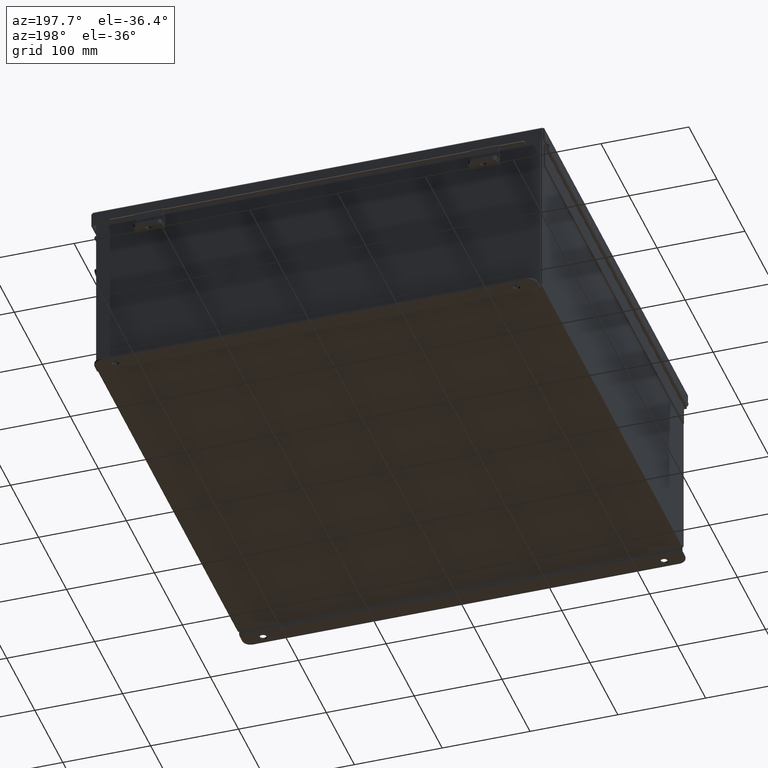
[diagram: clean part render]
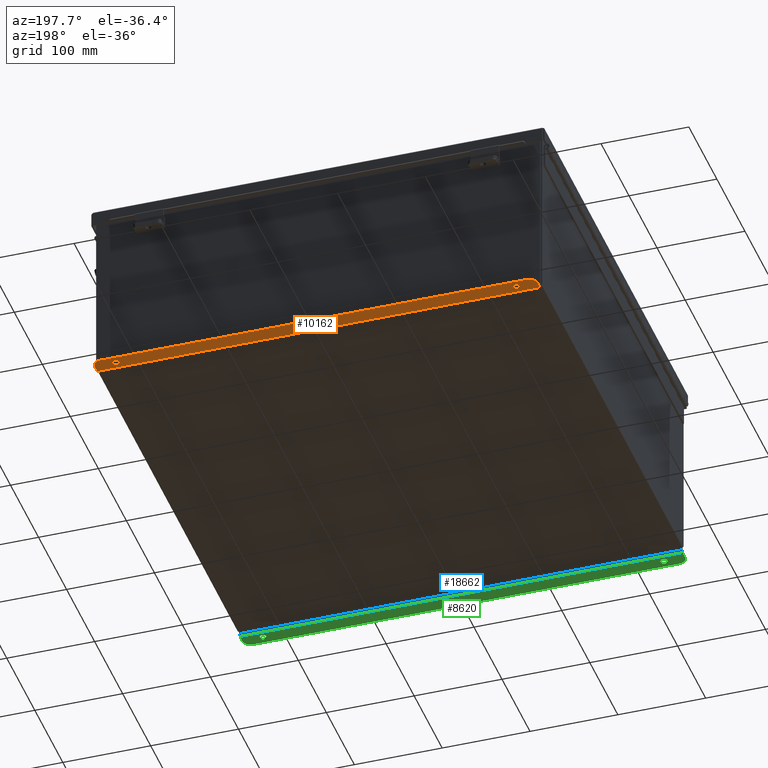
[diagram: same view with three faces highlighted in distinct colors, each labeled with its STEP entity id]
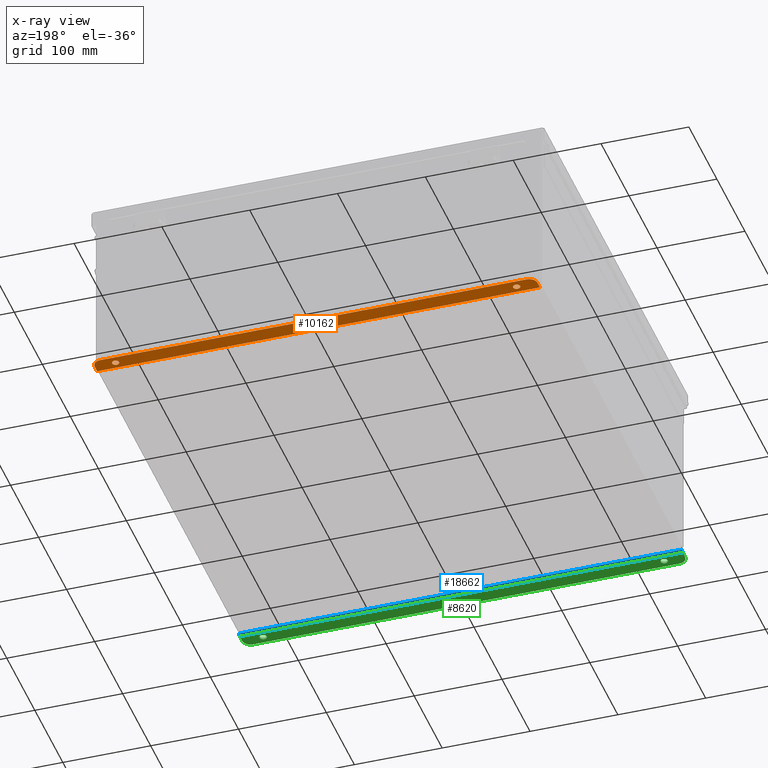
[diagram: x-ray of the same camera — body ghosted, the three highlighted faces saturated]
A machine part, auxiliary view with three faces highlighted in distinct colors.
The next image is the same camera in x-ray (body ghosted, the three faces saturated) — at least one of them is partly hidden behind the body in this view.
Their STEP definitions:

[orange] entity #10162 — the highlighted planar face has unit normal (0, 0, 1).
#339 = EDGE_CURVE ( 'NONE', #21179, #10850, #12421, .T. ) ;
#373 = CARTESIAN_POINT ( 'NONE',  ( 9.550299999999998200, 0.7377999999999989000, -4.187000000000003800 ) ) ;
#477 = DIRECTION ( 'NONE',  ( 0.0000000000000000000, 1.000000000000000000, -3.502369222646487000E-015 ) ) ;
#771 = VERTEX_POINT ( 'NONE', #17897 ) ;
#903 = DIRECTION ( 'NONE',  ( 0.0000000000000000000, -3.702694488566362300E-015, -1.000000000000000000 ) ) ;
#1253 = CARTESIAN_POINT ( 'NONE',  ( 9.925299999999998200, 0.01300000000000010700, -4.187000000000001200 ) ) ;
#1612 = VERTEX_POINT ( 'NONE', #6002 ) ;
#2067 = CIRCLE ( 'NONE', #7298, 0.1560000000000001900 ) ;
#2246 = EDGE_CURVE ( 'NONE', #16551, #771, #17233, .T. ) ;
#2334 = ORIENTED_EDGE ( 'NONE', *, *, #2246, .T. ) ;
#2651 = DIRECTION ( 'NONE',  ( 0.0000000000000000000, -1.000000000000000000, 3.702694488566362300E-015 ) ) ;
#2769 = VERTEX_POINT ( 'NONE', #17541 ) ;
#2870 = CARTESIAN_POINT ( 'NONE',  ( 0.0000000000000000000, 0.7377999999999989000, -4.187000000000003800 ) ) ;
#3526 = ORIENTED_EDGE ( 'NONE', *, *, #19359, .F. ) ;
#3590 = AXIS2_PLACEMENT_3D ( 'NONE', #6975, #19028, #8708 ) ;
#3943 = ORIENTED_EDGE ( 'NONE', *, *, #4002, .T. ) ;
#4002 = EDGE_CURVE ( 'NONE', #2769, #8201, #10166, .T. ) ;
#4089 = DIRECTION ( 'NONE',  ( 1.000000000000000000, 2.752408485047568600E-017, -1.019132772786892100E-031 ) ) ;
#4244 = DIRECTION ( 'NONE',  ( 0.0000000000000000000, -3.702694488566362300E-015, -1.000000000000000000 ) ) ;
#4315 = CARTESIAN_POINT ( 'NONE',  ( 0.0000000000000000000, -1.529834876451987200E-014, -4.187000000000001200 ) ) ;
#4382 = PLANE ( 'NONE',  #15698 ) ;
#4482 = FACE_BOUND ( 'NONE', #19039, .T. ) ;
#4507 = AXIS2_PLACEMENT_3D ( 'NONE', #19953, #9580, #21693 ) ;
#4541 = DIRECTION ( 'NONE',  ( 1.000000000000000000, 0.0000000000000000000, -0.0000000000000000000 ) ) ;
#4712 = VERTEX_POINT ( 'NONE', #19571 ) ;
#4862 = VERTEX_POINT ( 'NONE', #14718 ) ;
#5003 = CIRCLE ( 'NONE', #9954, 0.1560000000000001900 ) ;
#5655 = DIRECTION ( 'NONE',  ( 0.0000000000000000000, 1.000000000000000000, -3.702694488566362300E-015 ) ) ;
#5854 = ORIENTED_EDGE ( 'NONE', *, *, #339, .F. ) ;
#6002 = CARTESIAN_POINT ( 'NONE',  ( -8.987800000000000000, 0.2068000000000006800, -4.187000000000001200 ) ) ;
#6024 = EDGE_CURVE ( 'NONE', #771, #10850, #17713, .T. ) ;
#6141 = DIRECTION ( 'NONE',  ( 0.0000000000000000000, -1.000000000000000000, 3.702694488566362300E-015 ) ) ;
#6312 = CIRCLE ( 'NONE', #19712, 0.1560000000000001900 ) ;
#6726 = DIRECTION ( 'NONE',  ( 0.0000000000000000000, -3.702694488566362300E-015, -1.000000000000000000 ) ) ;
#6975 = CARTESIAN_POINT ( 'NONE',  ( 9.550299999999998200, 0.3628000000000008400, -4.187000000000002100 ) ) ;
#7298 = AXIS2_PLACEMENT_3D ( 'NONE', #14576, #4244, #16289 ) ;
#7361 = EDGE_CURVE ( 'NONE', #21179, #2769, #13603, .T. ) ;
#7415 = CARTESIAN_POINT ( 'NONE',  ( -9.925300000000001800, -1.529834876451987200E-014, -4.187000000000001200 ) ) ;
#8201 = VERTEX_POINT ( 'NONE', #13368 ) ;
#8400 = ORIENTED_EDGE ( 'NONE', *, *, #21008, .F. ) ;
#8708 = DIRECTION ( 'NONE',  ( 0.0000000000000000000, -1.000000000000000000, 4.370956789862820400E-015 ) ) ;
#8730 = EDGE_LOOP ( 'NONE', ( #17285, #9293 ) ) ;
#9035 = VECTOR ( 'NONE', #5655, 39.37007874015748100 ) ;
#9059 = FACE_OUTER_BOUND ( 'NONE', #17363, .T. ) ;
#9293 = ORIENTED_EDGE ( 'NONE', *, *, #12985, .F. ) ;
#9580 = DIRECTION ( 'NONE',  ( -0.0000000000000000000, -3.702694488566362300E-015, -1.000000000000000000 ) ) ;
#9954 = AXIS2_PLACEMENT_3D ( 'NONE', #11247, #903, #12968 ) ;
#10075 = ORIENTED_EDGE ( 'NONE', *, *, #10237, .T. ) ;
#10137 = EDGE_CURVE ( 'NONE', #4712, #1612, #5003, .T. ) ;
#10162 = ADVANCED_FACE ( 'NONE', ( #14727, #4482, #9059 ), #4382, .F. ) ;
#10166 = CIRCLE ( 'NONE', #4507, 0.3750000000000000600 ) ;
#10237 = EDGE_CURVE ( 'NONE', #8201, #16551, #12007, .T. ) ;
#10820 = DIRECTION ( 'NONE',  ( 0.0000000000000000000, -3.702694488566362300E-015, -1.000000000000000000 ) ) ;
#10850 = VERTEX_POINT ( 'NONE', #1253 ) ;
#11247 = CARTESIAN_POINT ( 'NONE',  ( -8.987800000000000000, 0.3628000000000008400, -4.187000000000002100 ) ) ;
#11337 = AXIS2_PLACEMENT_3D ( 'NONE', #21186, #10820, #477 ) ;
#12007 = LINE ( 'NONE', #2870, #16036 ) ;
#12033 = ORIENTED_EDGE ( 'NONE', *, *, #6024, .T. ) ;
#12037 = CARTESIAN_POINT ( 'NONE',  ( -9.925300000000000000, 0.01300000000000010700, -4.187000000000001200 ) ) ;
#12421 = LINE ( 'NONE', #19648, #21102 ) ;
#12968 = DIRECTION ( 'NONE',  ( 0.0000000000000000000, 1.000000000000000000, -3.502369222646487000E-015 ) ) ;
#12985 = EDGE_CURVE ( 'NONE', #1612, #4712, #2067, .T. ) ;
#13368 = CARTESIAN_POINT ( 'NONE',  ( -9.550300000000001800, 0.7377999999999989000, -4.187000000000003800 ) ) ;
#13603 = LINE ( 'NONE', #7415, #9035 ) ;
#14576 = CARTESIAN_POINT ( 'NONE',  ( -8.987800000000000000, 0.3628000000000008400, -4.187000000000002100 ) ) ;
#14718 = CARTESIAN_POINT ( 'NONE',  ( 8.987799999999998200, 0.2068000000000006800, -4.187000000000001200 ) ) ;
#14727 = FACE_BOUND ( 'NONE', #8730, .T. ) ;
#14809 = VERTEX_POINT ( 'NONE', #18394 ) ;
#15537 = VECTOR ( 'NONE', #2651, 39.37007874015748100 ) ;
#15698 = AXIS2_PLACEMENT_3D ( 'NONE', #4315, #16432, #6141 ) ;
#16036 = VECTOR ( 'NONE', #4541, 39.37007874015748100 ) ;
#16289 = DIRECTION ( 'NONE',  ( 0.0000000000000000000, 1.000000000000000000, -3.502369222646487000E-015 ) ) ;
#16432 = DIRECTION ( 'NONE',  ( 0.0000000000000000000, 3.702694488566362300E-015, 1.000000000000000000 ) ) ;
#16551 = VERTEX_POINT ( 'NONE', #373 ) ;
#17019 = CARTESIAN_POINT ( 'NONE',  ( 8.987799999999998200, 0.3628000000000008400, -4.187000000000002100 ) ) ;
#17233 = CIRCLE ( 'NONE', #3590, 0.3750000000000000600 ) ;
#17285 = ORIENTED_EDGE ( 'NONE', *, *, #10137, .F. ) ;
#17363 = EDGE_LOOP ( 'NONE', ( #10075, #2334, #12033, #5854, #18804, #3943 ) ) ;
#17541 = CARTESIAN_POINT ( 'NONE',  ( -9.925300000000001800, 0.3628000000000008400, -4.187000000000002100 ) ) ;
#17713 = LINE ( 'NONE', #18176, #15537 ) ;
#17897 = CARTESIAN_POINT ( 'NONE',  ( 9.925299999999998200, 0.3628000000000008400, -4.187000000000002100 ) ) ;
#18176 = CARTESIAN_POINT ( 'NONE',  ( 9.925299999999998200, -1.529834876451987200E-014, -4.187000000000001200 ) ) ;
#18394 = CARTESIAN_POINT ( 'NONE',  ( 8.987799999999998200, 0.5188000000000010400, -4.187000000000002900 ) ) ;
#18776 = DIRECTION ( 'NONE',  ( 0.0000000000000000000, 1.000000000000000000, -3.502369222646487000E-015 ) ) ;
#18804 = ORIENTED_EDGE ( 'NONE', *, *, #7361, .T. ) ;
#19028 = DIRECTION ( 'NONE',  ( -0.0000000000000000000, -3.702694488566362300E-015, -1.000000000000000000 ) ) ;
#19039 = EDGE_LOOP ( 'NONE', ( #8400, #3526 ) ) ;
#19359 = EDGE_CURVE ( 'NONE', #4862, #14809, #6312, .T. ) ;
#19571 = CARTESIAN_POINT ( 'NONE',  ( -8.987800000000000000, 0.5188000000000010400, -4.187000000000002900 ) ) ;
#19648 = CARTESIAN_POINT ( 'NONE',  ( 9.925299999999998200, 0.01300000000000010700, -4.187000000000001200 ) ) ;
#19712 = AXIS2_PLACEMENT_3D ( 'NONE', #17019, #6726, #18776 ) ;
#19953 = CARTESIAN_POINT ( 'NONE',  ( -9.550300000000001800, 0.3628000000000008400, -4.187000000000002100 ) ) ;
#20274 = CIRCLE ( 'NONE', #11337, 0.1560000000000001900 ) ;
#21008 = EDGE_CURVE ( 'NONE', #14809, #4862, #20274, .T. ) ;
#21102 = VECTOR ( 'NONE', #4089, 39.37007874015748100 ) ;
#21179 = VERTEX_POINT ( 'NONE', #12037 ) ;
#21186 = CARTESIAN_POINT ( 'NONE',  ( 8.987799999999998200, 0.3628000000000008400, -4.187000000000002100 ) ) ;
#21693 = DIRECTION ( 'NONE',  ( 0.0000000000000000000, -1.000000000000000000, 4.370956789862820400E-015 ) ) ;

[blue] entity #18662 — the highlighted cylindrical surface (edge-blend (fillet) strip) has radius 2.2276 mm, axis along (1, 0, -0).
#319 = CARTESIAN_POINT ( 'NONE',  ( 9.925299999999998200, 0.01300000000001759100, -4.099299999999999500 ) ) ;
#377 = ORIENTED_EDGE ( 'NONE', *, *, #16744, .F. ) ;
#909 = CYLINDRICAL_SURFACE ( 'NONE', #3194, 0.08770000000000026400 ) ;
#1229 = CARTESIAN_POINT ( 'NONE',  ( 9.925300000000016000, 0.01300000000001759100, -4.187000000000000300 ) ) ;
#1477 = VECTOR ( 'NONE', #19378, 39.37007874015748100 ) ;
#2016 = EDGE_LOOP ( 'NONE', ( #2073, #377, #11428, #17349 ) ) ;
#2073 = ORIENTED_EDGE ( 'NONE', *, *, #16339, .F. ) ;
#2398 = DIRECTION ( 'NONE',  ( 0.0000000000000000000, -1.000000000000000000, 0.0000000000000000000 ) ) ;
#2982 = CARTESIAN_POINT ( 'NONE',  ( -9.925299999999998200, 0.01299999999999792100, -4.099300000000003900 ) ) ;
#2990 = AXIS2_PLACEMENT_3D ( 'NONE', #319, #12405, #2398 ) ;
#3194 = AXIS2_PLACEMENT_3D ( 'NONE', #2982, #21960, #9841 ) ;
#3382 = VERTEX_POINT ( 'NONE', #9795 ) ;
#7374 = AXIS2_PLACEMENT_3D ( 'NONE', #10321, #22453, #12057 ) ;
#7961 = EDGE_CURVE ( 'NONE', #15293, #8181, #9451, .T. ) ;
#8181 = VERTEX_POINT ( 'NONE', #1229 ) ;
#8423 = DIRECTION ( 'NONE',  ( 1.000000000000000000, 8.208677865577687000E-017, -0.0000000000000000000 ) ) ;
#8763 = VERTEX_POINT ( 'NONE', #11408 ) ;
#9036 = CARTESIAN_POINT ( 'NONE',  ( 9.925300000000016000, 0.01300000000001759100, -4.187000000000000300 ) ) ;
#9451 = CIRCLE ( 'NONE', #2990, 0.08770000000000009700 ) ;
#9795 = CARTESIAN_POINT ( 'NONE',  ( -9.925299999999996500, -0.07470000000000234800, -4.099299999999999500 ) ) ;
#9841 = DIRECTION ( 'NONE',  ( 0.0000000000000000000, -3.699053013085864000E-015, -1.000000000000000000 ) ) ;
#10085 = FACE_OUTER_BOUND ( 'NONE', #2016, .T. ) ;
#10321 = CARTESIAN_POINT ( 'NONE',  ( -9.925299999999996500, 0.01299999999999792100, -4.099300000000003900 ) ) ;
#10515 = EDGE_CURVE ( 'NONE', #8763, #8181, #11200, .T. ) ;
#11200 = LINE ( 'NONE', #9036, #1477 ) ;
#11408 = CARTESIAN_POINT ( 'NONE',  ( -9.925299999999978700, 0.01300000000000010700, -4.187000000000003800 ) ) ;
#11428 = ORIENTED_EDGE ( 'NONE', *, *, #10515, .T. ) ;
#11871 = VECTOR ( 'NONE', #8423, 39.37007874015748100 ) ;
#12057 = DIRECTION ( 'NONE',  ( 0.0000000000000000000, -1.000000000000000000, 0.0000000000000000000 ) ) ;
#12405 = DIRECTION ( 'NONE',  ( 1.000000000000000000, 8.208677865577687000E-017, -0.0000000000000000000 ) ) ;
#13478 = CIRCLE ( 'NONE', #7374, 0.08770000000000009700 ) ;
#15293 = VERTEX_POINT ( 'NONE', #19629 ) ;
#16339 = EDGE_CURVE ( 'NONE', #3382, #15293, #16454, .T. ) ;
#16454 = LINE ( 'NONE', #18742, #11871 ) ;
#16744 = EDGE_CURVE ( 'NONE', #8763, #3382, #13478, .T. ) ;
#17349 = ORIENTED_EDGE ( 'NONE', *, *, #7961, .F. ) ;
#18662 = ADVANCED_FACE ( 'NONE', ( #10085 ), #909, .T. ) ;
#18742 = CARTESIAN_POINT ( 'NONE',  ( -9.925299999999998200, -0.07470000000000234800, -4.099299999999999500 ) ) ;
#19378 = DIRECTION ( 'NONE',  ( 1.000000000000000000, 2.752408485047608900E-017, -0.0000000000000000000 ) ) ;
#19629 = CARTESIAN_POINT ( 'NONE',  ( 9.925299999999998200, -0.07469999999998268300, -4.099300000000003900 ) ) ;
#21960 = DIRECTION ( 'NONE',  ( -1.000000000000000000, -8.208677865577687000E-017, 0.0000000000000000000 ) ) ;
#22453 = DIRECTION ( 'NONE',  ( -1.000000000000000000, -8.208677865577687000E-017, 0.0000000000000000000 ) ) ;

[green] entity #8620 — the highlighted planar face has unit normal (0, -0, 1).
#222 = DIRECTION ( 'NONE',  ( 0.0000000000000000000, 1.000000000000000000, -3.502369222646487000E-015 ) ) ;
#462 = CARTESIAN_POINT ( 'NONE',  ( 9.925300000000016000, 2.185478394931410600E-015, -4.187000000000000300 ) ) ;
#772 = CIRCLE ( 'NONE', #11980, 0.1560000000000001900 ) ;
#1229 = CARTESIAN_POINT ( 'NONE',  ( 9.925300000000016000, 0.01300000000001759100, -4.187000000000000300 ) ) ;
#1232 = ORIENTED_EDGE ( 'NONE', *, *, #10515, .F. ) ;
#1477 = VECTOR ( 'NONE', #19378, 39.37007874015748100 ) ;
#1488 = EDGE_CURVE ( 'NONE', #19287, #8181, #4360, .T. ) ;
#1921 = DIRECTION ( 'NONE',  ( 0.0000000000000000000, -3.362274453740631800E-015, -1.000000000000000000 ) ) ;
#1922 = AXIS2_PLACEMENT_3D ( 'NONE', #15088, #4760, #16804 ) ;
#2106 = FACE_BOUND ( 'NONE', #19636, .T. ) ;
#2108 = VECTOR ( 'NONE', #11826, 39.37007874015748100 ) ;
#2205 = EDGE_CURVE ( 'NONE', #12233, #19287, #9185, .T. ) ;
#2326 = CARTESIAN_POINT ( 'NONE',  ( -9.550300000000007100, 0.3628000000000008400, -4.187000000000001200 ) ) ;
#2841 = EDGE_CURVE ( 'NONE', #21386, #21705, #772, .T. ) ;
#3267 = VECTOR ( 'NONE', #3950, 39.37007874015748100 ) ;
#3874 = EDGE_CURVE ( 'NONE', #7727, #10699, #16913, .T. ) ;
#3950 = DIRECTION ( 'NONE',  ( -4.919856193148104900E-031, -1.000000000000000000, 3.702694488566362300E-015 ) ) ;
#4067 = DIRECTION ( 'NONE',  ( 0.0000000000000000000, -1.000000000000000000, 4.370956789862820400E-015 ) ) ;
#4360 = LINE ( 'NONE', #462, #3267 ) ;
#4456 = CARTESIAN_POINT ( 'NONE',  ( -8.987800000000007100, 0.2067999999999984900, -4.187000000000000300 ) ) ;
#4472 = CARTESIAN_POINT ( 'NONE',  ( -9.925299999999980500, -1.529834876451987200E-014, -4.187000000000000300 ) ) ;
#4569 = CIRCLE ( 'NONE', #15773, 0.1560000000000001900 ) ;
#4760 = DIRECTION ( 'NONE',  ( 0.0000000000000000000, -3.362274453740631800E-015, -1.000000000000000000 ) ) ;
#4947 = CARTESIAN_POINT ( 'NONE',  ( 8.987799999999989400, 0.2068000000000159700, -4.187000000000000300 ) ) ;
#4950 = EDGE_CURVE ( 'NONE', #21705, #21386, #13193, .T. ) ;
#5509 = EDGE_LOOP ( 'NONE', ( #19351, #21800 ) ) ;
#6133 = ORIENTED_EDGE ( 'NONE', *, *, #3874, .T. ) ;
#6827 = CARTESIAN_POINT ( 'NONE',  ( 9.550299999999989400, 0.3628000000000161700, -4.187000000000001200 ) ) ;
#7150 = AXIS2_PLACEMENT_3D ( 'NONE', #20929, #10559, #222 ) ;
#7402 = DIRECTION ( 'NONE',  ( 0.0000000000000000000, -3.362274453740631800E-015, -1.000000000000000000 ) ) ;
#7657 = DIRECTION ( 'NONE',  ( 0.0000000000000000000, 3.702694488566362300E-015, 1.000000000000000000 ) ) ;
#7667 = VERTEX_POINT ( 'NONE', #11613 ) ;
#7727 = VERTEX_POINT ( 'NONE', #16946 ) ;
#8167 = ORIENTED_EDGE ( 'NONE', *, *, #13077, .T. ) ;
#8181 = VERTEX_POINT ( 'NONE', #1229 ) ;
#8568 = DIRECTION ( 'NONE',  ( 0.0000000000000000000, -1.000000000000000000, 4.370956789862820400E-015 ) ) ;
#8620 = ADVANCED_FACE ( 'NONE', ( #2106, #11304, #20496 ), #12739, .F. ) ;
#8763 = VERTEX_POINT ( 'NONE', #11408 ) ;
#9036 = CARTESIAN_POINT ( 'NONE',  ( 9.925300000000016000, 0.01300000000001759100, -4.187000000000000300 ) ) ;
#9185 = CIRCLE ( 'NONE', #17898, 0.3750000000000000600 ) ;
#9565 = CARTESIAN_POINT ( 'NONE',  ( -9.550300000000007100, 0.7377999999999989000, -4.187000000000002900 ) ) ;
#10515 = EDGE_CURVE ( 'NONE', #8763, #8181, #11200, .T. ) ;
#10559 = DIRECTION ( 'NONE',  ( 0.0000000000000000000, -3.362274453740631800E-015, -1.000000000000000000 ) ) ;
#10699 = VERTEX_POINT ( 'NONE', #9565 ) ;
#11200 = LINE ( 'NONE', #9036, #1477 ) ;
#11304 = FACE_BOUND ( 'NONE', #5509, .T. ) ;
#11408 = CARTESIAN_POINT ( 'NONE',  ( -9.925299999999978700, 0.01300000000000010700, -4.187000000000003800 ) ) ;
#11613 = CARTESIAN_POINT ( 'NONE',  ( -8.987800000000007100, 0.5187999999999988200, -4.187000000000001200 ) ) ;
#11826 = DIRECTION ( 'NONE',  ( 1.000000000000000000, 4.910036603141682400E-031, 0.0000000000000000000 ) ) ;
#11980 = AXIS2_PLACEMENT_3D ( 'NONE', #17695, #7402, #19463 ) ;
#12230 = CARTESIAN_POINT ( 'NONE',  ( -8.987800000000007100, 0.3627999999999986800, -4.187000000000001200 ) ) ;
#12233 = VERTEX_POINT ( 'NONE', #12700 ) ;
#12700 = CARTESIAN_POINT ( 'NONE',  ( 9.550299999999989400, 0.7378000000000163300, -4.187000000000002900 ) ) ;
#12739 = PLANE ( 'NONE',  #20638 ) ;
#13077 = EDGE_CURVE ( 'NONE', #8763, #7727, #18279, .T. ) ;
#13193 = CIRCLE ( 'NONE', #1922, 0.1560000000000001900 ) ;
#13345 = CARTESIAN_POINT ( 'NONE',  ( 9.925300000000016000, 0.3628000000000161700, -4.187000000000001200 ) ) ;
#13381 = ORIENTED_EDGE ( 'NONE', *, *, #21874, .F. ) ;
#13652 = VECTOR ( 'NONE', #14875, 39.37007874015748100 ) ;
#13782 = EDGE_CURVE ( 'NONE', #7667, #15418, #15285, .T. ) ;
#13964 = DIRECTION ( 'NONE',  ( 0.0000000000000000000, 1.000000000000000000, -3.502369222646487000E-015 ) ) ;
#14391 = DIRECTION ( 'NONE',  ( -0.0000000000000000000, -3.702694488566362300E-015, -1.000000000000000000 ) ) ;
#14768 = ORIENTED_EDGE ( 'NONE', *, *, #2205, .T. ) ;
#14875 = DIRECTION ( 'NONE',  ( 4.919856193148104900E-031, 1.000000000000000000, -3.702694488566362300E-015 ) ) ;
#15088 = CARTESIAN_POINT ( 'NONE',  ( 8.987799999999989400, 0.3628000000000161700, -4.187000000000001200 ) ) ;
#15285 = CIRCLE ( 'NONE', #7150, 0.1560000000000001900 ) ;
#15418 = VERTEX_POINT ( 'NONE', #4456 ) ;
#15773 = AXIS2_PLACEMENT_3D ( 'NONE', #12230, #1921, #13964 ) ;
#15808 = ORIENTED_EDGE ( 'NONE', *, *, #13782, .F. ) ;
#15911 = ORIENTED_EDGE ( 'NONE', *, *, #17352, .T. ) ;
#16476 = AXIS2_PLACEMENT_3D ( 'NONE', #2326, #14391, #4067 ) ;
#16652 = EDGE_LOOP ( 'NONE', ( #8167, #6133, #15911, #14768, #20969, #1232 ) ) ;
#16804 = DIRECTION ( 'NONE',  ( 0.0000000000000000000, 1.000000000000000000, -3.502369222646487000E-015 ) ) ;
#16913 = CIRCLE ( 'NONE', #16476, 0.3750000000000000600 ) ;
#16946 = CARTESIAN_POINT ( 'NONE',  ( -9.925299999999980500, 0.3628000000000008400, -4.187000000000001200 ) ) ;
#17352 = EDGE_CURVE ( 'NONE', #10699, #12233, #20500, .T. ) ;
#17695 = CARTESIAN_POINT ( 'NONE',  ( 8.987799999999989400, 0.3628000000000161700, -4.187000000000001200 ) ) ;
#17898 = AXIS2_PLACEMENT_3D ( 'NONE', #6827, #18886, #8568 ) ;
#17946 = CARTESIAN_POINT ( 'NONE',  ( -2.035385365534024800E-024, -1.529834876451987200E-014, -4.187000000000000300 ) ) ;
#18279 = LINE ( 'NONE', #4472, #13652 ) ;
#18886 = DIRECTION ( 'NONE',  ( -0.0000000000000000000, -3.702694488566362300E-015, -1.000000000000000000 ) ) ;
#19287 = VERTEX_POINT ( 'NONE', #13345 ) ;
#19351 = ORIENTED_EDGE ( 'NONE', *, *, #2841, .F. ) ;
#19378 = DIRECTION ( 'NONE',  ( 1.000000000000000000, 2.752408485047608900E-017, -0.0000000000000000000 ) ) ;
#19463 = DIRECTION ( 'NONE',  ( 0.0000000000000000000, 1.000000000000000000, -3.502369222646487000E-015 ) ) ;
#19636 = EDGE_LOOP ( 'NONE', ( #15808, #13381 ) ) ;
#19728 = DIRECTION ( 'NONE',  ( -4.919856193148104900E-031, -1.000000000000000000, 3.702694488566362300E-015 ) ) ;
#20496 = FACE_OUTER_BOUND ( 'NONE', #16652, .T. ) ;
#20500 = LINE ( 'NONE', #20524, #2108 ) ;
#20524 = CARTESIAN_POINT ( 'NONE',  ( -2.035385365534024800E-024, 0.7378000000000011200, -4.187000000000002900 ) ) ;
#20638 = AXIS2_PLACEMENT_3D ( 'NONE', #17946, #7657, #19728 ) ;
#20929 = CARTESIAN_POINT ( 'NONE',  ( -8.987800000000007100, 0.3627999999999986800, -4.187000000000001200 ) ) ;
#20969 = ORIENTED_EDGE ( 'NONE', *, *, #1488, .T. ) ;
#21286 = CARTESIAN_POINT ( 'NONE',  ( 8.987799999999989400, 0.5188000000000163600, -4.187000000000001200 ) ) ;
#21386 = VERTEX_POINT ( 'NONE', #21286 ) ;
#21705 = VERTEX_POINT ( 'NONE', #4947 ) ;
#21800 = ORIENTED_EDGE ( 'NONE', *, *, #4950, .F. ) ;
#21874 = EDGE_CURVE ( 'NONE', #15418, #7667, #4569, .T. ) ;